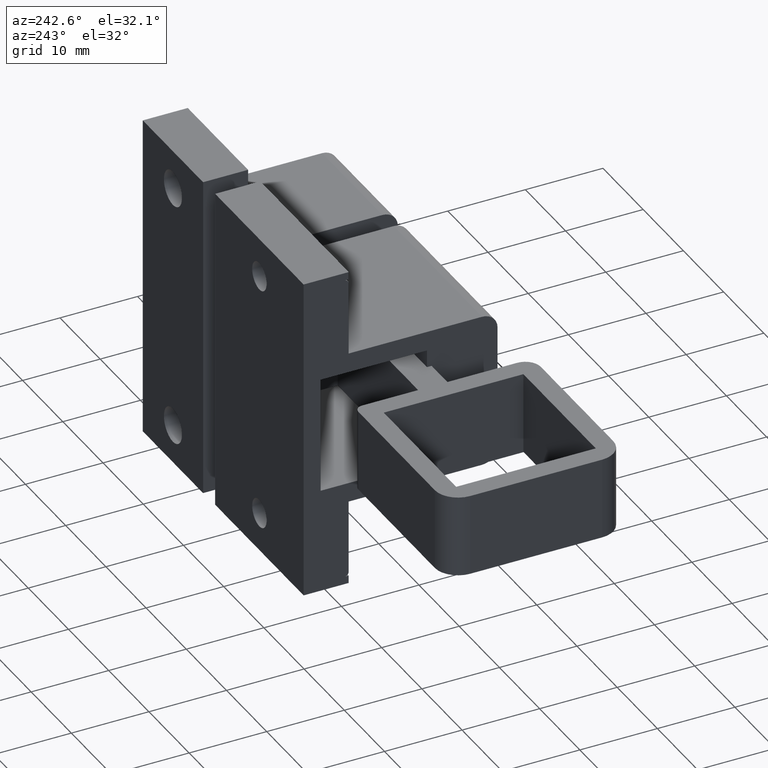
[diagram: clean part render]
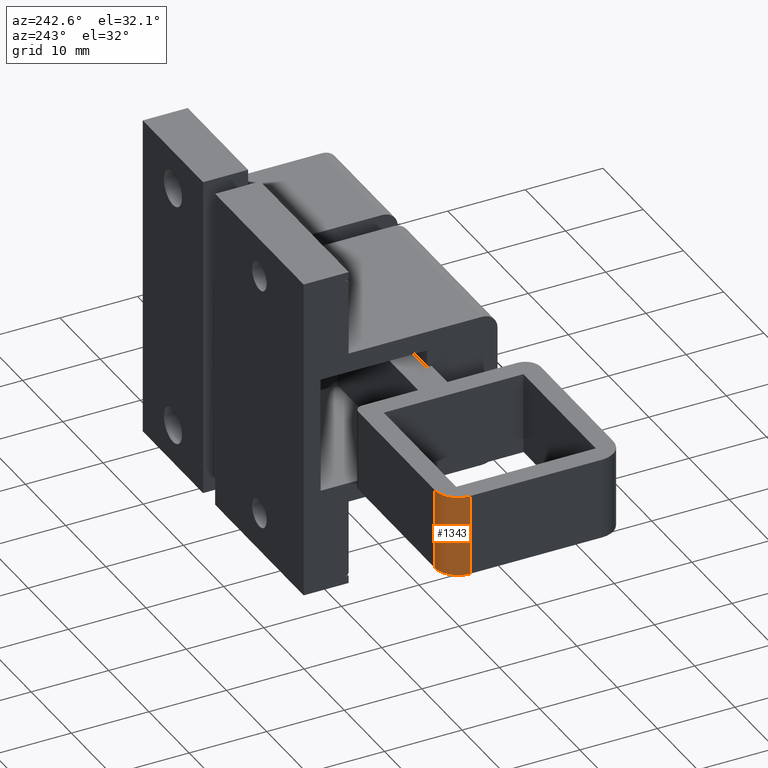
[diagram: same view with one face highlighted and labeled with its STEP entity id]
A machine part, auxiliary view. The second image highlights one B-rep face of the part: STEP entity #1343.
In plain terms, the highlighted cylindrical surface (edge-blend (fillet) strip) has radius 3 mm, axis along (0, 0, -1).
Its self-contained STEP definition (entity closure, byte-faithful):
#150=FACE_OUTER_BOUND('',#228,.T.);
#228=EDGE_LOOP('',(#1176,#1177,#1178,#1179));
#361=LINE('',#2226,#509);
#362=LINE('',#2230,#510);
#509=VECTOR('',#1834,10.5);
#510=VECTOR('',#1837,10.5);
#574=CIRCLE('',#1517,3.);
#575=CIRCLE('',#1518,3.);
#681=VERTEX_POINT('',#2224);
#682=VERTEX_POINT('',#2225);
#683=VERTEX_POINT('',#2227);
#684=VERTEX_POINT('',#2229);
#854=EDGE_CURVE('',#681,#682,#361,.T.);
#855=EDGE_CURVE('',#682,#683,#574,.T.);
#856=EDGE_CURVE('',#684,#683,#362,.T.);
#857=EDGE_CURVE('',#681,#684,#575,.T.);
#1176=ORIENTED_EDGE('',*,*,#854,.T.);
#1177=ORIENTED_EDGE('',*,*,#855,.T.);
#1178=ORIENTED_EDGE('',*,*,#856,.F.);
#1179=ORIENTED_EDGE('',*,*,#857,.F.);
#1287=CYLINDRICAL_SURFACE('',#1516,3.);
#1343=ADVANCED_FACE('',(#150),#1287,.T.);
#1516=AXIS2_PLACEMENT_3D('',#2223,#1832,#1833);
#1517=AXIS2_PLACEMENT_3D('',#2228,#1835,#1836);
#1518=AXIS2_PLACEMENT_3D('',#2231,#1838,#1839);
#1832=DIRECTION('center_axis',(-1.,0.,0.));
#1833=DIRECTION('ref_axis',(0.,1.,0.));
#1834=DIRECTION('',(1.,0.,0.));
#1835=DIRECTION('center_axis',(-1.,0.,0.));
#1836=DIRECTION('ref_axis',(0.,1.,0.));
#1837=DIRECTION('',(1.,0.,0.));
#1838=DIRECTION('center_axis',(-1.,0.,0.));
#1839=DIRECTION('ref_axis',(0.,1.,0.));
#2223=CARTESIAN_POINT('Origin',(-5.25,42.5,4.00000000000001));
#2224=CARTESIAN_POINT('',(-5.25,45.5,4.00000000000001));
#2225=CARTESIAN_POINT('',(5.25,45.5,4.00000000000001));
#2226=CARTESIAN_POINT('',(-5.25,45.5,4.00000000000001));
#2227=CARTESIAN_POINT('',(5.25,42.5,1.00000000000001));
#2228=CARTESIAN_POINT('Origin',(5.25,42.5,4.00000000000001));
#2229=CARTESIAN_POINT('',(-5.25,42.5,1.00000000000001));
#2230=CARTESIAN_POINT('',(-5.25,42.5,1.00000000000001));
#2231=CARTESIAN_POINT('Origin',(-5.25,42.5,4.00000000000001));